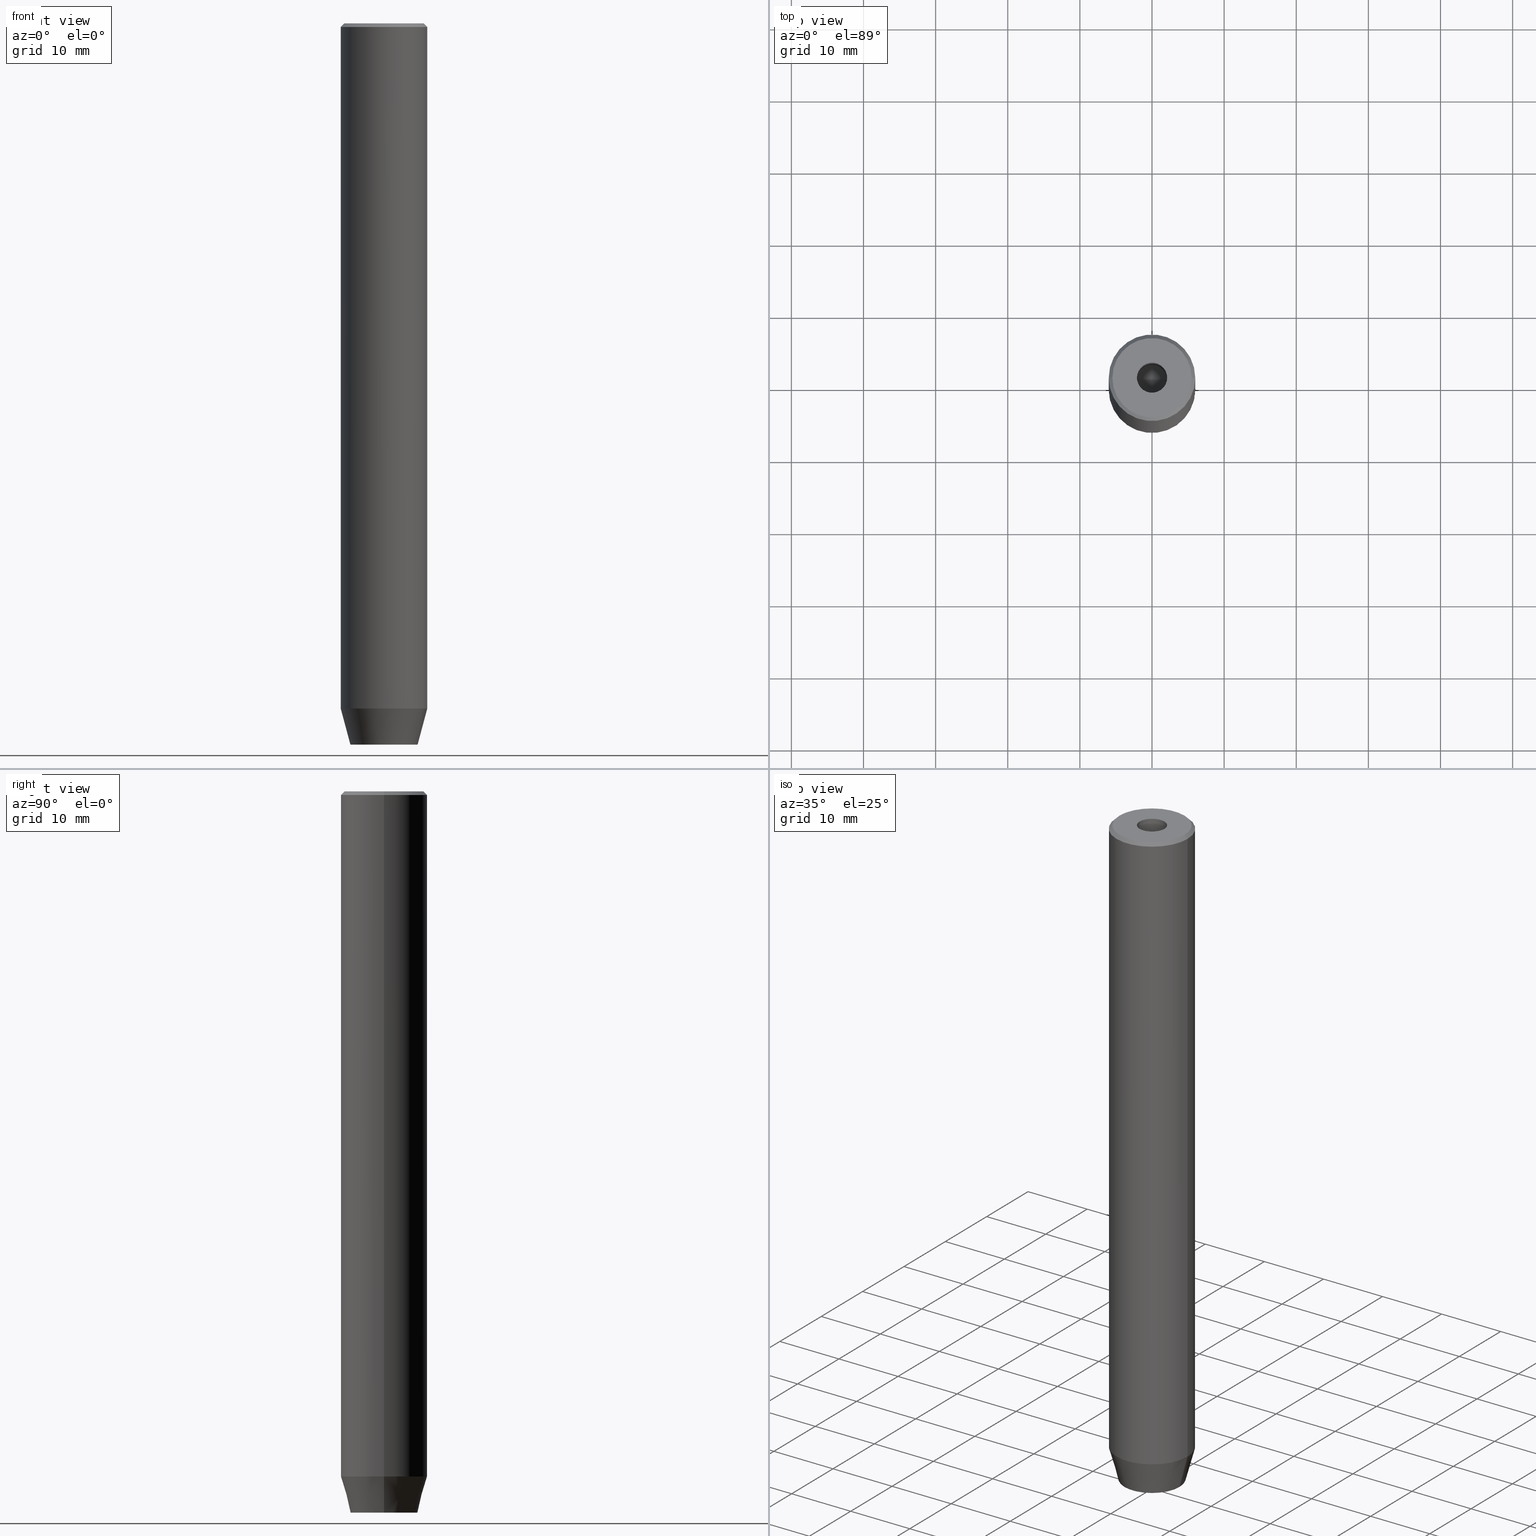
[diagram: canonical four-view strip — front | top / right | iso, engineering-drawing reading convention]
A machine part, canonical four-view strip (front | top / right | iso — engineering-drawing reading convention). The complete STEP part file that produces these views, byte-faithful:
ISO-10303-21;
HEADER;
FILE_DESCRIPTION (( 'STEP AP203' ),
    '1' );
FILE_NAME ('6c83.STEP',
    '2024-01-02T21:55:39',
    ( '' ),
    ( '' ),
    'SwSTEP 2.0',
    'SolidWorks 2019',
    '' );
FILE_SCHEMA (( 'CONFIG_CONTROL_DESIGN' ));
ENDSEC;

DATA;
#1 = EDGE_CURVE ( 'NONE', #283, #66, #377, .T. ) ;
#2 = ORIENTED_EDGE ( 'NONE', *, *, #380, .F. ) ;
#3 = CARTESIAN_POINT ( 'NONE',  ( -2.099999999999998757, 2.571758278209439985E-16, -1.990051048614449116E-16 ) ) ;
#4 = ORIENTED_EDGE ( 'NONE', *, *, #455, .F. ) ;
#5 = VECTOR ( 'NONE', #544, 1000.000000000000000 ) ;
#6 = CARTESIAN_POINT ( 'NONE',  ( -3.982994051648894933E-15, 0.000000000000000000, -16.26180729995787644 ) ) ;
#7 = ORIENTED_EDGE ( 'NONE', *, *, #494, .F. ) ;
#8 = CARTESIAN_POINT ( 'NONE',  ( 0.000000000000000000, 0.000000000000000000, 0.000000000000000000 ) ) ;
#9 = VERTEX_POINT ( 'NONE', #169 ) ;
#10 = CARTESIAN_POINT ( 'NONE',  ( -2.500000000000000444, 1.443375672974064772, -100.0000000000000000 ) ) ;
#11 = EDGE_CURVE ( 'NONE', #338, #332, #439, .T. ) ;
#12 = VERTEX_POINT ( 'NONE', #76 ) ;
#13 = CIRCLE ( 'NONE', #525, 6.000000000000000000 ) ;
#14 = FACE_OUTER_BOUND ( 'NONE', #511, .T. ) ;
#15 = AXIS2_PLACEMENT_3D ( 'NONE', #141, #512, #244 ) ;
#16 =( GEOMETRIC_REPRESENTATION_CONTEXT ( 3 ) GLOBAL_UNCERTAINTY_ASSIGNED_CONTEXT ( ( #148 ) ) GLOBAL_UNIT_ASSIGNED_CONTEXT ( ( #306, #384, #559 ) ) REPRESENTATION_CONTEXT ( 'NONE', 'WORKASPACE' ) );
#17 = EDGE_CURVE ( 'NONE', #529, #330, #257, .T. ) ;
#18 = ORIENTED_EDGE ( 'NONE', *, *, #538, .F. ) ;
#19 = CARTESIAN_POINT ( 'NONE',  ( 5.500000000000004441, 7.041719095097283838E-16, 0.000000000000000000 ) ) ;
#20 = EDGE_LOOP ( 'NONE', ( #285, #276 ) ) ;
#21 = DIRECTION ( 'NONE',  ( -0.000000000000000000, -0.000000000000000000, -1.000000000000000000 ) ) ;
#22 = ORIENTED_EDGE ( 'NONE', *, *, #236, .T. ) ;
#23 = DIRECTION ( 'NONE',  ( 0.000000000000000000, 0.000000000000000000, 1.000000000000000000 ) ) ;
#24 = CIRCLE ( 'NONE', #38, 6.000000000000000000 ) ;
#25 = CARTESIAN_POINT ( 'NONE',  ( -2.099999999999996980, 2.571758278209438013E-16, -15.00000000000000000 ) ) ;
#26 = VECTOR ( 'NONE', #363, 1000.000000000000000 ) ;
#27 = ORIENTED_EDGE ( 'NONE', *, *, #65, .T. ) ;
#28 = CARTESIAN_POINT ( 'NONE',  ( 5.500000000000004441, 6.735557395310447940E-16, 0.000000000000000000 ) ) ;
#29 = EDGE_CURVE ( 'NONE', #453, #12, #230, .T. ) ;
#30 = DIRECTION ( 'NONE',  ( 0.000000000000000000, 0.000000000000000000, -1.000000000000000000 ) ) ;
#31 = CARTESIAN_POINT ( 'NONE',  ( 0.000000000000000000, 0.000000000000000000, 0.000000000000000000 ) ) ;
#32 = DIRECTION ( 'NONE',  ( -0.7071067811865426878, 0.000000000000000000, -0.7071067811865524577 ) ) ;
#33 = CARTESIAN_POINT ( 'NONE',  ( 2.500000000000000000, 1.443375672974064328, -97.20000000000000284 ) ) ;
#34 = CARTESIAN_POINT ( 'NONE',  ( 0.000000000000000000, 0.000000000000000000, -0.5000000000000029976 ) ) ;
#35 = CARTESIAN_POINT ( 'NONE',  ( 2.500000000000000000, -1.443375672974064106, -97.20000000000000284 ) ) ;
#36 = CARTESIAN_POINT ( 'NONE',  ( -1.250000000000000444, 2.165063509461097269, -100.0000000000000000 ) ) ;
#37 = DATE_AND_TIME ( #219, #92 ) ;
#38 = AXIS2_PLACEMENT_3D ( 'NONE', #124, #74, #428 ) ;
#39 = DIRECTION ( 'NONE',  ( -0.8660254037844387076, -0.5000000000000001110, 0.000000000000000000 ) ) ;
#40 = VECTOR ( 'NONE', #56, 1000.000000000000000 ) ;
#41 = ORIENTED_EDGE ( 'NONE', *, *, #515, .T. ) ;
#42 = PERSON_AND_ORGANIZATION ( #562, #370 ) ;
#43 = FACE_OUTER_BOUND ( 'NONE', #172, .T. ) ;
#44 = ADVANCED_FACE ( 'NONE', ( #388 ), #573, .F. ) ;
#45 = APPROVAL_DATE_TIME ( #446, #424 ) ;
#46 = CARTESIAN_POINT ( 'NONE',  ( -2.500000000000000444, 0.000000000000000000, -97.20000000000000284 ) ) ;
#47 = AXIS2_PLACEMENT_3D ( 'NONE', #346, #260, #438 ) ;
#48 = AXIS2_PLACEMENT_3D ( 'NONE', #427, #23, #379 ) ;
#49 = LINE ( 'NONE', #560, #364 ) ;
#50 = EDGE_CURVE ( 'NONE', #415, #471, #49, .T. ) ;
#51 = ORIENTED_EDGE ( 'NONE', *, *, #418, .T. ) ;
#52 = FACE_BOUND ( 'NONE', #20, .T. ) ;
#53 = ORIENTED_EDGE ( 'NONE', *, *, #245, .T. ) ;
#54 = CARTESIAN_POINT ( 'NONE',  ( 0.000000000000000000, 0.000000000000000000, -15.00000000000000000 ) ) ;
#55 = AXIS2_PLACEMENT_3D ( 'NONE', #345, #178, #385 ) ;
#56 = DIRECTION ( 'NONE',  ( -0.000000000000000000, -0.000000000000000000, 1.000000000000000000 ) ) ;
#57 = ORIENTED_EDGE ( 'NONE', *, *, #455, .T. ) ;
#58 = DIRECTION ( 'NONE',  ( 0.000000000000000000, 0.000000000000000000, -1.000000000000000000 ) ) ;
#59 = ORIENTED_EDGE ( 'NONE', *, *, #17, .T. ) ;
#60 = LINE ( 'NONE', #416, #5 ) ;
#61 = ORIENTED_EDGE ( 'NONE', *, *, #11, .F. ) ;
#62 = AXIS2_PLACEMENT_3D ( 'NONE', #337, #270, #119 ) ;
#63 = CARTESIAN_POINT ( 'NONE',  ( 0.000000000000000000, 0.000000000000000000, 0.000000000000000000 ) ) ;
#64 = AXIS2_PLACEMENT_3D ( 'NONE', #8, #237, #506 ) ;
#65 = EDGE_CURVE ( 'NONE', #555, #471, #24, .T. ) ;
#66 = VERTEX_POINT ( 'NONE', #403 ) ;
#67 = DIRECTION ( 'NONE',  ( 0.000000000000000000, 1.000000000000000000, 0.000000000000000000 ) ) ;
#68 = ORIENTED_EDGE ( 'NONE', *, *, #333, .F. ) ;
#69 = FACE_OUTER_BOUND ( 'NONE', #425, .T. ) ;
#70 = LINE ( 'NONE', #381, #194 ) ;
#71 = ORIENTED_EDGE ( 'NONE', *, *, #465, .F. ) ;
#72 = CARTESIAN_POINT ( 'NONE',  ( 0.000000000000000000, 0.000000000000000000, -100.0000000000000000 ) ) ;
#73 = VECTOR ( 'NONE', #570, 1000.000000000000000 ) ;
#74 = DIRECTION ( 'NONE',  ( -0.000000000000000000, -0.000000000000000000, 1.000000000000000000 ) ) ;
#75 = CARTESIAN_POINT ( 'NONE',  ( 2.500000000000000000, 1.443375672974064328, -100.0000000000000000 ) ) ;
#76 = CARTESIAN_POINT ( 'NONE',  ( -2.099999999999996980, 2.571758278209438013E-16, -15.00000000000000000 ) ) ;
#77 = CARTESIAN_POINT ( 'NONE',  ( 0.000000000000000000, 0.000000000000000000, -1.990051048614449116E-16 ) ) ;
#78 = DIRECTION ( 'NONE',  ( -1.000000000000000000, 0.000000000000000000, -0.000000000000000000 ) ) ;
#79 = DIRECTION ( 'NONE',  ( 1.000000000000000000, 0.000000000000000000, 0.000000000000000000 ) ) ;
#80 = DIRECTION ( 'NONE',  ( 1.000000000000000000, 0.000000000000000000, 0.000000000000000000 ) ) ;
#81 = ADVANCED_FACE ( 'NONE', ( #340 ), #524, .F. ) ;
#82 = CARTESIAN_POINT ( 'NONE',  ( 0.000000000000000000, 0.000000000000000000, -15.00000000000000000 ) ) ;
#83 = EDGE_LOOP ( 'NONE', ( #293, #352, #522, #567 ) ) ;
#84 = PERSON_AND_ORGANIZATION_ROLE ( 'classification_officer' ) ;
#85 = CLOSED_SHELL ( 'NONE', ( #498, #98, #280, #436, #542, #140, #233, #360, #231, #329, #356, #81, #115, #44, #275, #227, #410, #316, #390 ) ) ;
#86 = DIRECTION ( 'NONE',  ( 0.000000000000000000, 0.000000000000000000, -1.000000000000000000 ) ) ;
#87 = CIRCLE ( 'NONE', #586, 2.099999999999996980 ) ;
#88 = COORDINATED_UNIVERSAL_TIME_OFFSET ( 1, 0, .AHEAD. ) ;
#89 = EDGE_CURVE ( 'NONE', #107, #321, #518, .T. ) ;
#90 = CARTESIAN_POINT ( 'NONE',  ( 2.500000000000000000, 1.443375672974064328, -97.20000000000000284 ) ) ;
#91 = DIRECTION ( 'NONE',  ( -0.2588190451025214611, 3.169619151431774186E-17, 0.9659258262890679791 ) ) ;
#92 = LOCAL_TIME ( 22, 55, 39.00000000000000000, #493 ) ;
#93 = VECTOR ( 'NONE', #484, 1000.000000000000000 ) ;
#94 = ORIENTED_EDGE ( 'NONE', *, *, #181, .F. ) ;
#95 = PLANE ( 'NONE',  #165 ) ;
#96 = PLANE ( 'NONE',  #15 ) ;
#97 = FACE_OUTER_BOUND ( 'NONE', #83, .T. ) ;
#98 = ADVANCED_FACE ( 'NONE', ( #314 ), #584, .F. ) ;
#99 = AXIS2_PLACEMENT_3D ( 'NONE', #307, #210, #486 ) ;
#100 = ORIENTED_EDGE ( 'NONE', *, *, #538, .T. ) ;
#101 = DIRECTION ( 'NONE',  ( 1.000000000000000000, 0.000000000000000000, 0.000000000000000000 ) ) ;
#102 = ORIENTED_EDGE ( 'NONE', *, *, #175, .F. ) ;
#103 = CARTESIAN_POINT ( 'NONE',  ( 0.000000000000000000, -2.886751345948128211, -100.0000000000000000 ) ) ;
#104 = ORIENTED_EDGE ( 'NONE', *, *, #465, .T. ) ;
#105 = EDGE_CURVE ( 'NONE', #332, #201, #255, .T. ) ;
#106 = CYLINDRICAL_SURFACE ( 'NONE', #527, 6.000000000000000000 ) ;
#107 = VERTEX_POINT ( 'NONE', #133 ) ;
#108 = AXIS2_PLACEMENT_3D ( 'NONE', #144, #328, #550 ) ;
#109 = ORIENTED_EDGE ( 'NONE', *, *, #89, .T. ) ;
#110 = FACE_OUTER_BOUND ( 'NONE', #185, .T. ) ;
#111 = EDGE_CURVE ( 'NONE', #179, #332, #207, .T. ) ;
#112 = ORIENTED_EDGE ( 'NONE', *, *, #405, .F. ) ;
#113 = LINE ( 'NONE', #437, #391 ) ;
#114 = FACE_OUTER_BOUND ( 'NONE', #305, .T. ) ;
#115 = ADVANCED_FACE ( 'NONE', ( #110 ), #432, .F. ) ;
#116 = EDGE_LOOP ( 'NONE', ( #299, #121, #243, #264 ) ) ;
#117 = APPLICATION_PROTOCOL_DEFINITION ( 'international standard', 'config_control_design', 1994, #212 ) ;
#118 = AXIS2_PLACEMENT_3D ( 'NONE', #213, #222, #80 ) ;
#119 = DIRECTION ( 'NONE',  ( 1.000000000000000000, 0.000000000000000000, 0.000000000000000000 ) ) ;
#120 = CARTESIAN_POINT ( 'NONE',  ( 0.000000000000000000, 0.000000000000000000, 0.000000000000000000 ) ) ;
#121 = ORIENTED_EDGE ( 'NONE', *, *, #517, .T. ) ;
#122 = EDGE_CURVE ( 'NONE', #9, #408, #70, .T. ) ;
#123 = APPROVAL_ROLE ( '' ) ;
#124 = CARTESIAN_POINT ( 'NONE',  ( 0.000000000000000000, 0.000000000000000000, -95.00000000000000000 ) ) ;
#125 = CARTESIAN_POINT ( 'NONE',  ( 2.099999999999996980, 0.000000000000000000, -15.00000000000000000 ) ) ;
#126 = EDGE_LOOP ( 'NONE', ( #387, #513, #102, #248 ) ) ;
#127 = PERSON_AND_ORGANIZATION ( #562, #370 ) ;
#128 = EDGE_CURVE ( 'NONE', #383, #555, #113, .T. ) ;
#129 = PLANE ( 'NONE',  #242 ) ;
#130 = APPROVAL_ROLE ( '' ) ;
#131 = APPROVAL_STATUS ( 'not_yet_approved' ) ;
#132 = EDGE_CURVE ( 'NONE', #443, #321, #296, .T. ) ;
#133 = CARTESIAN_POINT ( 'NONE',  ( -2.500000000000000444, -1.443375672974064328, -97.20000000000000284 ) ) ;
#134 = DIRECTION ( 'NONE',  ( 0.5000000000000001110, 0.8660254037844385966, -0.000000000000000000 ) ) ;
#135 = AXIS2_PLACEMENT_3D ( 'NONE', #532, #86, #256 ) ;
#136 = AXIS2_PLACEMENT_3D ( 'NONE', #376, #343, #334 ) ;
#137 = CARTESIAN_POINT ( 'NONE',  ( 2.500000000000000000, -1.443375672974064106, -100.0000000000000000 ) ) ;
#138 = ORIENTED_EDGE ( 'NONE', *, *, #153, .T. ) ;
#139 = LINE ( 'NONE', #546, #26 ) ;
#140 = ADVANCED_FACE ( 'NONE', ( #350, #157 ), #478, .T. ) ;
#141 = CARTESIAN_POINT ( 'NONE',  ( 0.000000000000000000, 0.000000000000000000, -97.20000000000000284 ) ) ;
#142 = ORIENTED_EDGE ( 'NONE', *, *, #236, .F. ) ;
#143 = VECTOR ( 'NONE', #200, 1000.000000000000000 ) ;
#144 = CARTESIAN_POINT ( 'NONE',  ( 0.000000000000000000, 0.000000000000000000, -0.5000000000000029976 ) ) ;
#145 = EDGE_CURVE ( 'NONE', #471, #555, #413, .T. ) ;
#146 = ORIENTED_EDGE ( 'NONE', *, *, #65, .F. ) ;
#147 = CARTESIAN_POINT ( 'NONE',  ( -4.660254037844381081, 6.527522992771884330E-16, -100.0000000000000000 ) ) ;
#148 = UNCERTAINTY_MEASURE_WITH_UNIT (LENGTH_MEASURE( 1.000000000000000082E-05 ), #306, 'distance_accuracy_value', 'NONE');
#149 = ORIENTED_EDGE ( 'NONE', *, *, #298, .F. ) ;
#150 = LINE ( 'NONE', #374, #406 ) ;
#151 = MANIFOLD_SOLID_BREP ( 'Vrt�k z�vitn�ku pro M5 z�vit1', #85 ) ;
#152 = EDGE_LOOP ( 'NONE', ( #53, #218, #100, #407, #464, #327 ) ) ;
#153 = EDGE_CURVE ( 'NONE', #488, #330, #13, .T. ) ;
#154 = CARTESIAN_POINT ( 'NONE',  ( -2.500000000000000444, -1.443375672974064328, -97.20000000000000284 ) ) ;
#155 = ORIENTED_EDGE ( 'NONE', *, *, #583, .F. ) ;
#156 = DIRECTION ( 'NONE',  ( -0.000000000000000000, -0.000000000000000000, 1.000000000000000000 ) ) ;
#157 = FACE_OUTER_BOUND ( 'NONE', #196, .T. ) ;
#158 = VERTEX_POINT ( 'NONE', #90 ) ;
#159 = PERSON_AND_ORGANIZATION ( #562, #370 ) ;
#160 = DIRECTION ( 'NONE',  ( -0.8571673007021113344, 1.049727191138617463E-16, 0.5150380749100558209 ) ) ;
#161 = FACE_OUTER_BOUND ( 'NONE', #126, .T. ) ;
#162 = LOCAL_TIME ( 22, 55, 39.00000000000000000, #537 ) ;
#163 = ORIENTED_EDGE ( 'NONE', *, *, #145, .T. ) ;
#164 = CARTESIAN_POINT ( 'NONE',  ( 6.000000000000000000, 0.000000000000000000, -95.00000000000000000 ) ) ;
#165 = AXIS2_PLACEMENT_3D ( 'NONE', #274, #168, #442 ) ;
#166 = DIRECTION ( 'NONE',  ( -1.000000000000000000, 0.000000000000000000, 0.000000000000000000 ) ) ;
#167 = CC_DESIGN_APPROVAL ( #341, ( #447 ) ) ;
#168 = DIRECTION ( 'NONE',  ( 1.000000000000000000, 0.000000000000000000, -0.000000000000000000 ) ) ;
#169 = CARTESIAN_POINT ( 'NONE',  ( 2.500000000000000000, -1.443375672974064106, -97.20000000000000284 ) ) ;
#170 = CALENDAR_DATE ( 2024, 2, 1 ) ;
#171 = DIRECTION ( 'NONE',  ( 1.000000000000000000, 0.000000000000000000, 0.000000000000000000 ) ) ;
#172 = EDGE_LOOP ( 'NONE', ( #558, #533, #273, #319 ) ) ;
#173 = APPROVAL_STATUS ( 'not_yet_approved' ) ;
#174 = DATE_AND_TIME ( #582, #452 ) ;
#175 = EDGE_CURVE ( 'NONE', #179, #158, #269, .T. ) ;
#176 = VECTOR ( 'NONE', #226, 1000.000000000000000 ) ;
#177 = CONICAL_SURFACE ( 'NONE', #429, 6.000000000000000000, 0.2617993877991502405 ) ;
#178 = DIRECTION ( 'NONE',  ( -0.4999999999999998890, -0.8660254037844387076, 0.000000000000000000 ) ) ;
#179 = VERTEX_POINT ( 'NONE', #354 ) ;
#180 = CARTESIAN_POINT ( 'NONE',  ( 1.250000000000000222, 2.165063509461096825, -97.20000000000000284 ) ) ;
#181 = EDGE_CURVE ( 'NONE', #481, #338, #232, .T. ) ;
#182 = ORIENTED_EDGE ( 'NONE', *, *, #247, .T. ) ;
#183 = APPROVAL_PERSON_ORGANIZATION ( #42, #424, #130 ) ;
#184 = LINE ( 'NONE', #521, #253 ) ;
#185 = EDGE_LOOP ( 'NONE', ( #342, #187, #68, #571 ) ) ;
#186 = CARTESIAN_POINT ( 'NONE',  ( -1.250000000000000444, 2.165063509461097269, -97.20000000000000284 ) ) ;
#187 = ORIENTED_EDGE ( 'NONE', *, *, #89, .F. ) ;
#188 = FACE_OUTER_BOUND ( 'NONE', #152, .T. ) ;
#189 = CC_DESIGN_PERSON_AND_ORGANIZATION_ASSIGNMENT ( #127, #353, ( #401 ) ) ;
#190 = EDGE_LOOP ( 'NONE', ( #104, #182 ) ) ;
#191 = DIRECTION ( 'NONE',  ( -0.000000000000000000, -0.000000000000000000, 1.000000000000000000 ) ) ;
#192 = CC_DESIGN_APPROVAL ( #564, ( #401 ) ) ;
#193 = EDGE_CURVE ( 'NONE', #12, #283, #454, .T. ) ;
#194 = VECTOR ( 'NONE', #303, 999.9999999999998863 ) ;
#195 = CONICAL_SURFACE ( 'NONE', #492, 5.500000000000004441, 0.7853981633974415066 ) ;
#196 = EDGE_LOOP ( 'NONE', ( #155, #362 ) ) ;
#197 = CARTESIAN_POINT ( 'NONE',  ( -1.249999999999999556, -2.165063509461096825, -97.20000000000000284 ) ) ;
#198 = ADVANCED_BREP_SHAPE_REPRESENTATION ( '6c83', ( #151, #48 ), #16 ) ;
#199 = ORIENTED_EDGE ( 'NONE', *, *, #128, .F. ) ;
#200 = DIRECTION ( 'NONE',  ( 0.7071067811865426878, 8.659560562354874926E-17, -0.7071067811865524577 ) ) ;
#201 = VERTEX_POINT ( 'NONE', #75 ) ;
#202 = LINE ( 'NONE', #440, #528 ) ;
#203 = ORIENTED_EDGE ( 'NONE', *, *, #509, .T. ) ;
#204 = AXIS2_PLACEMENT_3D ( 'NONE', #259, #565, #292 ) ;
#205 = CYLINDRICAL_SURFACE ( 'NONE', #254, 2.099999999999997868 ) ;
#206 = AXIS2_PLACEMENT_3D ( 'NONE', #54, #367, #101 ) ;
#207 = LINE ( 'NONE', #495, #325 ) ;
#208 = ORIENTED_EDGE ( 'NONE', *, *, #517, .F. ) ;
#209 = DIRECTION ( 'NONE',  ( 0.000000000000000000, -1.000000000000000000, 0.000000000000000000 ) ) ;
#210 = DIRECTION ( 'NONE',  ( -0.000000000000000000, -0.000000000000000000, 1.000000000000000000 ) ) ;
#211 = DIRECTION ( 'NONE',  ( 1.000000000000000000, 0.000000000000000000, 0.000000000000000000 ) ) ;
#212 = APPLICATION_CONTEXT ( 'configuration controlled 3d designs of mechanical parts and assemblies' ) ;
#213 = CARTESIAN_POINT ( 'NONE',  ( 0.000000000000000000, 0.000000000000000000, -1.990051048614449116E-16 ) ) ;
#214 = DIRECTION ( 'NONE',  ( -0.000000000000000000, -0.000000000000000000, 1.000000000000000000 ) ) ;
#215 = CARTESIAN_POINT ( 'NONE',  ( 1.250000000000000222, 2.165063509461096825, -100.0000000000000000 ) ) ;
#216 = EDGE_CURVE ( 'NONE', #456, #443, #581, .T. ) ;
#217 = DIRECTION ( 'NONE',  ( -0.000000000000000000, -0.000000000000000000, -1.000000000000000000 ) ) ;
#218 = ORIENTED_EDGE ( 'NONE', *, *, #175, .T. ) ;
#219 = CALENDAR_DATE ( 2024, 2, 1 ) ;
#220 = VECTOR ( 'NONE', #469, 1000.000000000000114 ) ;
#221 = LINE ( 'NONE', #125, #404 ) ;
#222 = DIRECTION ( 'NONE',  ( -0.000000000000000000, -0.000000000000000000, 1.000000000000000000 ) ) ;
#223 = CALENDAR_DATE ( 2024, 2, 1 ) ;
#224 = CARTESIAN_POINT ( 'NONE',  ( -2.099999999999997868, 2.571758278209438999E-16, 0.000000000000000000 ) ) ;
#225 = APPROVAL_DATE_TIME ( #174, #341 ) ;
#226 = DIRECTION ( 'NONE',  ( -0.000000000000000000, -0.000000000000000000, -1.000000000000000000 ) ) ;
#227 = ADVANCED_FACE ( 'NONE', ( #161 ), #129, .F. ) ;
#228 = AXIS2_PLACEMENT_3D ( 'NONE', #361, #526, #79 ) ;
#229 = VECTOR ( 'NONE', #209, 1000.000000000000000 ) ;
#230 = LINE ( 'NONE', #25, #449 ) ;
#231 = ADVANCED_FACE ( 'NONE', ( #43 ), #300, .T. ) ;
#232 = LINE ( 'NONE', #536, #402 ) ;
#233 = ADVANCED_FACE ( 'NONE', ( #52, #409 ), #386, .T. ) ;
#234 = DIRECTION ( 'NONE',  ( -0.000000000000000000, -0.000000000000000000, 1.000000000000000000 ) ) ;
#235 = CARTESIAN_POINT ( 'NONE',  ( 0.000000000000000000, 0.000000000000000000, -95.00000000000000000 ) ) ;
#236 = EDGE_CURVE ( 'NONE', #9, #456, #311, .T. ) ;
#237 = DIRECTION ( 'NONE',  ( -0.000000000000000000, -0.000000000000000000, 1.000000000000000000 ) ) ;
#238 = ORIENTED_EDGE ( 'NONE', *, *, #515, .F. ) ;
#239 = CARTESIAN_POINT ( 'NONE',  ( -6.000000000000000000, 7.347880794884119736E-16, -0.5000000000000029976 ) ) ;
#240 = EDGE_CURVE ( 'NONE', #415, #383, #271, .T. ) ;
#241 = LOCAL_TIME ( 22, 55, 39.00000000000000000, #88 ) ;
#242 = AXIS2_PLACEMENT_3D ( 'NONE', #180, #134, #398 ) ;
#243 = ORIENTED_EDGE ( 'NONE', *, *, #418, .F. ) ;
#244 = DIRECTION ( 'NONE',  ( -1.000000000000000000, 0.000000000000000000, -0.000000000000000000 ) ) ;
#245 = EDGE_CURVE ( 'NONE', #481, #179, #389, .T. ) ;
#246 = EDGE_LOOP ( 'NONE', ( #375, #579, #309, #549 ) ) ;
#247 = EDGE_CURVE ( 'NONE', #373, #529, #318, .T. ) ;
#248 = ORIENTED_EDGE ( 'NONE', *, *, #111, .T. ) ;
#249 = DIRECTION ( 'NONE',  ( 0.2588190451025214611, 0.000000000000000000, 0.9659258262890679791 ) ) ;
#250 = EDGE_LOOP ( 'NONE', ( #468, #473, #519 ) ) ;
#251 = VECTOR ( 'NONE', #39, 999.9999999999998863 ) ;
#252 = LINE ( 'NONE', #568, #229 ) ;
#253 = VECTOR ( 'NONE', #487, 1000.000000000000000 ) ;
#254 = AXIS2_PLACEMENT_3D ( 'NONE', #474, #156, #472 ) ;
#255 = LINE ( 'NONE', #215, #266 ) ;
#256 = DIRECTION ( 'NONE',  ( -1.000000000000000000, 0.000000000000000000, 0.000000000000000000 ) ) ;
#257 = LINE ( 'NONE', #434, #496 ) ;
#258 = DIRECTION ( 'NONE',  ( -0.000000000000000000, -0.000000000000000000, 1.000000000000000000 ) ) ;
#259 = CARTESIAN_POINT ( 'NONE',  ( 1.249999999999999778, -2.165063509461096380, -97.20000000000000284 ) ) ;
#260 = DIRECTION ( 'NONE',  ( -0.000000000000000000, -0.000000000000000000, 1.000000000000000000 ) ) ;
#261 = ORIENTED_EDGE ( 'NONE', *, *, #323, .F. ) ;
#262 = COORDINATED_UNIVERSAL_TIME_OFFSET ( 1, 0, .AHEAD. ) ;
#263 = CARTESIAN_POINT ( 'NONE',  ( -2.500000000000000444, -1.443375672974064328, -100.0000000000000000 ) ) ;
#264 = ORIENTED_EDGE ( 'NONE', *, *, #17, .F. ) ;
#265 = DATE_TIME_ROLE ( 'classification_date' ) ;
#266 = VECTOR ( 'NONE', #450, 1000.000000000000000 ) ;
#267 = CARTESIAN_POINT ( 'NONE',  ( -1.250000000000000444, 2.165063509461097269, -97.20000000000000284 ) ) ;
#268 = CALENDAR_DATE ( 2024, 2, 1 ) ;
#269 = LINE ( 'NONE', #448, #507 ) ;
#270 = DIRECTION ( 'NONE',  ( -0.000000000000000000, -0.000000000000000000, 1.000000000000000000 ) ) ;
#271 = CIRCLE ( 'NONE', #347, 4.660254037844381081 ) ;
#272 = AXIS2_PLACEMENT_3D ( 'NONE', #77, #435, #514 ) ;
#273 = ORIENTED_EDGE ( 'NONE', *, *, #128, .T. ) ;
#274 = CARTESIAN_POINT ( 'NONE',  ( 2.500000000000000000, 0.000000000000000000, -97.20000000000000284 ) ) ;
#275 = ADVANCED_FACE ( 'NONE', ( #575 ), #95, .F. ) ;
#276 = ORIENTED_EDGE ( 'NONE', *, *, #1, .F. ) ;
#277 = FACE_OUTER_BOUND ( 'NONE', #497, .T. ) ;
#278 = PRODUCT_RELATED_PRODUCT_CATEGORY ( 'detail', '', ( #382 ) ) ;
#279 = CARTESIAN_POINT ( 'NONE',  ( 0.000000000000000000, 0.000000000000000000, 0.000000000000000000 ) ) ;
#280 = ADVANCED_FACE ( 'NONE', ( #351 ), #508, .T. ) ;
#281 = CARTESIAN_POINT ( 'NONE',  ( -6.000000000000000000, 7.347880794884119736E-16, -95.00000000000000000 ) ) ;
#282 = EDGE_CURVE ( 'NONE', #453, #430, #221, .T. ) ;
#283 = VERTEX_POINT ( 'NONE', #3 ) ;
#284 = CARTESIAN_POINT ( 'NONE',  ( 6.000000000000000000, 0.000000000000000000, 0.000000000000000000 ) ) ;
#285 = ORIENTED_EDGE ( 'NONE', *, *, #554, .F. ) ;
#286 = DIRECTION ( 'NONE',  ( 1.000000000000000000, 0.000000000000000000, 0.000000000000000000 ) ) ;
#287 = AXIS2_PLACEMENT_3D ( 'NONE', #63, #553, #412 ) ;
#288 = ORIENTED_EDGE ( 'NONE', *, *, #405, .T. ) ;
#289 = FACE_OUTER_BOUND ( 'NONE', #545, .T. ) ;
#290 = ORIENTED_EDGE ( 'NONE', *, *, #105, .F. ) ;
#291 = CARTESIAN_POINT ( 'NONE',  ( -5.500000000000004441, 0.000000000000000000, 0.000000000000000000 ) ) ;
#292 = DIRECTION ( 'NONE',  ( 0.8660254037844385966, 0.4999999999999999445, 0.000000000000000000 ) ) ;
#293 = ORIENTED_EDGE ( 'NONE', *, *, #193, .F. ) ;
#294 = PERSON_AND_ORGANIZATION ( #562, #370 ) ;
#295 = PRODUCT_DEFINITION_SHAPE ( 'NONE', 'NONE',  #447 ) ;
#296 = LINE ( 'NONE', #520, #460 ) ;
#297 = DIRECTION ( 'NONE',  ( -0.000000000000000000, -0.000000000000000000, -1.000000000000000000 ) ) ;
#298 = EDGE_CURVE ( 'NONE', #430, #66, #184, .T. ) ;
#299 = ORIENTED_EDGE ( 'NONE', *, *, #247, .F. ) ;
#300 = CONICAL_SURFACE ( 'NONE', #47, 6.000000000000000000, 0.2617993877991502405 ) ;
#301 = LINE ( 'NONE', #28, #143 ) ;
#302 = APPROVAL_PERSON_ORGANIZATION ( #159, #341, #123 ) ;
#303 = DIRECTION ( 'NONE',  ( -0.8660254037844387076, -0.5000000000000001110, 0.000000000000000000 ) ) ;
#304 = DIRECTION ( 'NONE',  ( -0.000000000000000000, -0.000000000000000000, 1.000000000000000000 ) ) ;
#305 = EDGE_LOOP ( 'NONE', ( #516, #348, #426 ) ) ;
#306 =( LENGTH_UNIT ( ) NAMED_UNIT ( * ) SI_UNIT ( .MILLI., .METRE. ) );
#307 = CARTESIAN_POINT ( 'NONE',  ( 0.000000000000000000, 0.000000000000000000, -95.00000000000000000 ) ) ;
#308 = DIRECTION ( 'NONE',  ( 0.8571673007021113344, 0.000000000000000000, 0.5150380749100558209 ) ) ;
#309 = ORIENTED_EDGE ( 'NONE', *, *, #245, .F. ) ;
#310 = COORDINATED_UNIVERSAL_TIME_OFFSET ( 1, 0, .AHEAD. ) ;
#311 = LINE ( 'NONE', #35, #574 ) ;
#312 = APPROVAL_DATE_TIME ( #580, #564 ) ;
#313 = APPLICATION_CONTEXT ( 'configuration controlled 3d designs of mechanical parts and assemblies' ) ;
#314 = FACE_OUTER_BOUND ( 'NONE', #250, .T. ) ;
#315 = CC_DESIGN_SECURITY_CLASSIFICATION ( #344, ( #401 ) ) ;
#316 = ADVANCED_FACE ( 'NONE', ( #114 ), #585, .F. ) ;
#317 = DIRECTION ( 'NONE',  ( -0.000000000000000000, -0.000000000000000000, 1.000000000000000000 ) ) ;
#318 = CIRCLE ( 'NONE', #421, 5.500000000000004441 ) ;
#319 = ORIENTED_EDGE ( 'NONE', *, *, #145, .F. ) ;
#320 = FACE_OUTER_BOUND ( 'NONE', #246, .T. ) ;
#321 = VERTEX_POINT ( 'NONE', #263 ) ;
#322 = DIRECTION ( 'NONE',  ( -0.000000000000000000, -0.000000000000000000, 1.000000000000000000 ) ) ;
#323 = EDGE_CURVE ( 'NONE', #408, #443, #395, .T. ) ;
#324 = CARTESIAN_POINT ( 'NONE',  ( 2.099999999999996980, 0.000000000000000000, -15.00000000000000000 ) ) ;
#325 = VECTOR ( 'NONE', #587, 1000.000000000000000 ) ;
#326 = CIRCLE ( 'NONE', #64, 5.500000000000004441 ) ;
#327 = ORIENTED_EDGE ( 'NONE', *, *, #494, .T. ) ;
#328 = DIRECTION ( 'NONE',  ( 0.000000000000000000, 0.000000000000000000, -1.000000000000000000 ) ) ;
#329 = ADVANCED_FACE ( 'NONE', ( #479 ), #195, .T. ) ;
#330 = VERTEX_POINT ( 'NONE', #239 ) ;
#331 = LINE ( 'NONE', #197, #220 ) ;
#332 = VERTEX_POINT ( 'NONE', #420 ) ;
#333 = EDGE_CURVE ( 'NONE', #408, #107, #331, .T. ) ;
#334 = DIRECTION ( 'NONE',  ( 1.000000000000000000, 0.000000000000000000, 0.000000000000000000 ) ) ;
#335 = AXIS2_PLACEMENT_3D ( 'NONE', #569, #30, #78 ) ;
#336 = ORIENTED_EDGE ( 'NONE', *, *, #583, .T. ) ;
#337 = CARTESIAN_POINT ( 'NONE',  ( 0.000000000000000000, 0.000000000000000000, -15.00000000000000000 ) ) ;
#338 = VERTEX_POINT ( 'NONE', #10 ) ;
#339 = MECHANICAL_CONTEXT ( 'NONE', #313, 'mechanical' ) ;
#340 = FACE_OUTER_BOUND ( 'NONE', #419, .T. ) ;
#341 = APPROVAL ( #530, 'NEUR�EN�' ) ;
#342 = ORIENTED_EDGE ( 'NONE', *, *, #132, .T. ) ;
#343 = DIRECTION ( 'NONE',  ( -0.000000000000000000, -0.000000000000000000, 1.000000000000000000 ) ) ;
#344 = SECURITY_CLASSIFICATION ( '', '', #393 ) ;
#345 = CARTESIAN_POINT ( 'NONE',  ( -1.249999999999999556, -2.165063509461096825, -97.20000000000000284 ) ) ;
#346 = CARTESIAN_POINT ( 'NONE',  ( 0.000000000000000000, 0.000000000000000000, -95.00000000000000000 ) ) ;
#347 = AXIS2_PLACEMENT_3D ( 'NONE', #491, #317, #500 ) ;
#348 = ORIENTED_EDGE ( 'NONE', *, *, #282, .T. ) ;
#349 = CIRCLE ( 'NONE', #108, 6.000000000000000000 ) ;
#350 = FACE_BOUND ( 'NONE', #543, .T. ) ;
#351 = FACE_OUTER_BOUND ( 'NONE', #116, .T. ) ;
#352 = ORIENTED_EDGE ( 'NONE', *, *, #458, .F. ) ;
#353 = PERSON_AND_ORGANIZATION_ROLE ( 'design_supplier' ) ;
#354 = CARTESIAN_POINT ( 'NONE',  ( -1.084202172485504434E-16, 2.886751345948129543, -97.20000000000000284 ) ) ;
#355 = PERSON_AND_ORGANIZATION_ROLE ( 'creator' ) ;
#356 = ADVANCED_FACE ( 'NONE', ( #320 ), #459, .F. ) ;
#357 = DATE_AND_TIME ( #223, #499 ) ;
#358 = AXIS2_PLACEMENT_3D ( 'NONE', #46, #166, #475 ) ;
#359 = DIRECTION ( 'NONE',  ( 0.8660254037844385966, -0.5000000000000001110, 0.000000000000000000 ) ) ;
#360 = ADVANCED_FACE ( 'NONE', ( #14 ), #106, .T. ) ;
#361 = CARTESIAN_POINT ( 'NONE',  ( 0.000000000000000000, 0.000000000000000000, 0.000000000000000000 ) ) ;
#362 = ORIENTED_EDGE ( 'NONE', *, *, #240, .F. ) ;
#363 = DIRECTION ( 'NONE',  ( 0.000000000000000000, -1.000000000000000000, 0.000000000000000000 ) ) ;
#364 = VECTOR ( 'NONE', #91, 1000.000000000000114 ) ;
#365 = ORIENTED_EDGE ( 'NONE', *, *, #216, .T. ) ;
#366 = CARTESIAN_POINT ( 'NONE',  ( 0.000000000000000000, 0.000000000000000000, -15.00000000000000000 ) ) ;
#367 = DIRECTION ( 'NONE',  ( -0.000000000000000000, -0.000000000000000000, 1.000000000000000000 ) ) ;
#368 = CARTESIAN_POINT ( 'NONE',  ( 0.000000000000000000, -2.886751345948128211, -97.20000000000000284 ) ) ;
#369 = VECTOR ( 'NONE', #297, 1000.000000000000000 ) ;
#370 = ORGANIZATION ( 'NEUR�EN�', 'NEUR�EN�', '' ) ;
#371 = ORIENTED_EDGE ( 'NONE', *, *, #1, .T. ) ;
#372 = CYLINDRICAL_SURFACE ( 'NONE', #287, 2.099999999999997868 ) ;
#373 = VERTEX_POINT ( 'NONE', #19 ) ;
#374 = CARTESIAN_POINT ( 'NONE',  ( -6.000000000000000000, 7.347880794884119736E-16, 0.000000000000000000 ) ) ;
#375 = ORIENTED_EDGE ( 'NONE', *, *, #11, .T. ) ;
#376 = CARTESIAN_POINT ( 'NONE',  ( 0.000000000000000000, 0.000000000000000000, 0.000000000000000000 ) ) ;
#377 = CIRCLE ( 'NONE', #118, 2.099999999999998757 ) ;
#378 = ORIENTED_EDGE ( 'NONE', *, *, #153, .F. ) ;
#379 = DIRECTION ( 'NONE',  ( 1.000000000000000000, 0.000000000000000000, 0.000000000000000000 ) ) ;
#380 = EDGE_CURVE ( 'NONE', #12, #430, #461, .T. ) ;
#381 = CARTESIAN_POINT ( 'NONE',  ( 1.249999999999999778, -2.165063509461096380, -97.20000000000000284 ) ) ;
#382 = PRODUCT ( '6c83', '6c83', '', ( #339 ) ) ;
#383 = VERTEX_POINT ( 'NONE', #510 ) ;
#384 =( NAMED_UNIT ( * ) PLANE_ANGLE_UNIT ( ) SI_UNIT ( $, .RADIAN. ) );
#385 = DIRECTION ( 'NONE',  ( 0.8660254037844387076, -0.4999999999999998890, 0.000000000000000000 ) ) ;
#386 = PLANE ( 'NONE',  #228 ) ;
#387 = ORIENTED_EDGE ( 'NONE', *, *, #105, .T. ) ;
#388 = FACE_OUTER_BOUND ( 'NONE', #552, .T. ) ;
#389 = LINE ( 'NONE', #267, #93 ) ;
#390 = ADVANCED_FACE ( 'NONE', ( #97 ), #372, .F. ) ;
#391 = VECTOR ( 'NONE', #249, 1000.000000000000114 ) ;
#392 = ORIENTED_EDGE ( 'NONE', *, *, #193, .T. ) ;
#393 = SECURITY_CLASSIFICATION_LEVEL ( 'unclassified' ) ;
#394 = VECTOR ( 'NONE', #21, 1000.000000000000000 ) ;
#395 = LINE ( 'NONE', #578, #369 ) ;
#396 = DIRECTION ( 'NONE',  ( 0.8660254037844385966, 0.5000000000000001110, 0.000000000000000000 ) ) ;
#397 = DATE_TIME_ROLE ( 'creation_date' ) ;
#398 = DIRECTION ( 'NONE',  ( -0.8660254037844385966, 0.5000000000000001110, 0.000000000000000000 ) ) ;
#399 = PERSON_AND_ORGANIZATION ( #562, #370 ) ;
#400 = CC_DESIGN_DATE_AND_TIME_ASSIGNMENT ( #357, #397, ( #447 ) ) ;
#401 = PRODUCT_DEFINITION_FORMATION_WITH_SPECIFIED_SOURCE ( 'LIBOVOLN�', '', #382, .NOT_KNOWN. ) ;
#402 = VECTOR ( 'NONE', #433, 1000.000000000000000 ) ;
#403 = CARTESIAN_POINT ( 'NONE',  ( 2.099999999999998757, 0.000000000000000000, -1.990051048614449116E-16 ) ) ;
#404 = VECTOR ( 'NONE', #308, 1000.000000000000000 ) ;
#405 = EDGE_CURVE ( 'NONE', #555, #488, #501, .T. ) ;
#406 = VECTOR ( 'NONE', #258, 1000.000000000000000 ) ;
#407 = ORIENTED_EDGE ( 'NONE', *, *, #122, .T. ) ;
#408 = VERTEX_POINT ( 'NONE', #368 ) ;
#409 = FACE_OUTER_BOUND ( 'NONE', #190, .T. ) ;
#410 = ADVANCED_FACE ( 'NONE', ( #188 ), #96, .T. ) ;
#411 = EDGE_LOOP ( 'NONE', ( #576, #142, #18, #203 ) ) ;
#412 = DIRECTION ( 'NONE',  ( 1.000000000000000000, 0.000000000000000000, 0.000000000000000000 ) ) ;
#413 = CIRCLE ( 'NONE', #99, 6.000000000000000000 ) ;
#414 = CIRCLE ( 'NONE', #272, 2.099999999999998757 ) ;
#415 = VERTEX_POINT ( 'NONE', #147 ) ;
#416 = CARTESIAN_POINT ( 'NONE',  ( -2.500000000000000444, 0.000000000000000000, -100.0000000000000000 ) ) ;
#417 = CARTESIAN_POINT ( 'NONE',  ( 6.000000000000000000, 0.000000000000000000, -0.5000000000000029976 ) ) ;
#418 = EDGE_CURVE ( 'NONE', #330, #488, #349, .T. ) ;
#419 = EDGE_LOOP ( 'NONE', ( #57, #94, #7, #109 ) ) ;
#420 = CARTESIAN_POINT ( 'NONE',  ( -2.168404344971008868E-16, 2.886751345948129543, -100.0000000000000000 ) ) ;
#421 = AXIS2_PLACEMENT_3D ( 'NONE', #120, #304, #171 ) ;
#422 = ORIENTED_EDGE ( 'NONE', *, *, #122, .F. ) ;
#423 = DIRECTION ( 'NONE',  ( 1.000000000000000000, 0.000000000000000000, 0.000000000000000000 ) ) ;
#424 = APPROVAL ( #173, 'NEUR�EN�' ) ;
#425 = EDGE_LOOP ( 'NONE', ( #27, #41, #51, #112 ) ) ;
#426 = ORIENTED_EDGE ( 'NONE', *, *, #458, .T. ) ;
#427 = CARTESIAN_POINT ( 'NONE',  ( 0.000000000000000000, 0.000000000000000000, 0.000000000000000000 ) ) ;
#428 = DIRECTION ( 'NONE',  ( 1.000000000000000000, 0.000000000000000000, 0.000000000000000000 ) ) ;
#429 = AXIS2_PLACEMENT_3D ( 'NONE', #235, #234, #423 ) ;
#430 = VERTEX_POINT ( 'NONE', #324 ) ;
#431 = APPLICATION_PROTOCOL_DEFINITION ( 'international standard', 'config_control_design', 1994, #313 ) ;
#432 = PLANE ( 'NONE',  #55 ) ;
#433 = DIRECTION ( 'NONE',  ( -0.000000000000000000, -0.000000000000000000, -1.000000000000000000 ) ) ;
#434 = CARTESIAN_POINT ( 'NONE',  ( -5.500000000000004441, 0.000000000000000000, 0.000000000000000000 ) ) ;
#435 = DIRECTION ( 'NONE',  ( -0.000000000000000000, -0.000000000000000000, 1.000000000000000000 ) ) ;
#436 = ADVANCED_FACE ( 'NONE', ( #277 ), #177, .T. ) ;
#437 = CARTESIAN_POINT ( 'NONE',  ( 6.000000000000000000, 0.000000000000000000, -95.00000000000000000 ) ) ;
#438 = DIRECTION ( 'NONE',  ( 1.000000000000000000, 0.000000000000000000, 0.000000000000000000 ) ) ;
#439 = LINE ( 'NONE', #36, #480 ) ;
#440 = CARTESIAN_POINT ( 'NONE',  ( -2.500000000000000444, 0.000000000000000000, -97.20000000000000284 ) ) ;
#441 = EDGE_CURVE ( 'NONE', #201, #456, #139, .T. ) ;
#442 = DIRECTION ( 'NONE',  ( -0.000000000000000000, 0.000000000000000000, -1.000000000000000000 ) ) ;
#443 = VERTEX_POINT ( 'NONE', #103 ) ;
#444 = PERSON_AND_ORGANIZATION ( #562, #370 ) ;
#445 = DIRECTION ( 'NONE',  ( -0.000000000000000000, -0.000000000000000000, 1.000000000000000000 ) ) ;
#446 = DATE_AND_TIME ( #268, #241 ) ;
#447 = PRODUCT_DEFINITION ( 'NEZN�M�', '', #401, #467 ) ;
#448 = CARTESIAN_POINT ( 'NONE',  ( 1.250000000000000222, 2.165063509461096825, -97.20000000000000284 ) ) ;
#449 = VECTOR ( 'NONE', #160, 1000.000000000000000 ) ;
#450 = DIRECTION ( 'NONE',  ( 0.8660254037844385966, -0.5000000000000001110, 0.000000000000000000 ) ) ;
#451 = AXIS2_PLACEMENT_3D ( 'NONE', #186, #547, #466 ) ;
#452 = LOCAL_TIME ( 22, 55, 39.00000000000000000, #262 ) ;
#453 = VERTEX_POINT ( 'NONE', #6 ) ;
#454 = LINE ( 'NONE', #224, #73 ) ;
#455 = EDGE_CURVE ( 'NONE', #321, #338, #60, .T. ) ;
#456 = VERTEX_POINT ( 'NONE', #137 ) ;
#457 = DIRECTION ( 'NONE',  ( -1.000000000000000000, 0.000000000000000000, 0.000000000000000000 ) ) ;
#458 = EDGE_CURVE ( 'NONE', #430, #12, #87, .T. ) ;
#459 = PLANE ( 'NONE',  #451 ) ;
#460 = VECTOR ( 'NONE', #483, 1000.000000000000114 ) ;
#461 = CIRCLE ( 'NONE', #206, 2.099999999999996980 ) ;
#462 = CC_DESIGN_PERSON_AND_ORGANIZATION_ASSIGNMENT ( #577, #355, ( #401 ) ) ;
#463 = CARTESIAN_POINT ( 'NONE',  ( -2.500000000000000444, 1.443375672974064772, -97.20000000000000284 ) ) ;
#464 = ORIENTED_EDGE ( 'NONE', *, *, #333, .T. ) ;
#465 = EDGE_CURVE ( 'NONE', #529, #373, #326, .T. ) ;
#466 = DIRECTION ( 'NONE',  ( -0.8660254037844385966, -0.5000000000000001110, 0.000000000000000000 ) ) ;
#467 = DESIGN_CONTEXT ( 'detailed design', #212, 'design' ) ;
#468 = ORIENTED_EDGE ( 'NONE', *, *, #282, .F. ) ;
#469 = DIRECTION ( 'NONE',  ( -0.8660254037844387076, 0.4999999999999998890, 0.000000000000000000 ) ) ;
#470 = AXIS2_PLACEMENT_3D ( 'NONE', #82, #445, #211 ) ;
#471 = VERTEX_POINT ( 'NONE', #281 ) ;
#472 = DIRECTION ( 'NONE',  ( 1.000000000000000000, 0.000000000000000000, 0.000000000000000000 ) ) ;
#473 = ORIENTED_EDGE ( 'NONE', *, *, #29, .T. ) ;
#474 = CARTESIAN_POINT ( 'NONE',  ( 0.000000000000000000, 0.000000000000000000, 0.000000000000000000 ) ) ;
#475 = DIRECTION ( 'NONE',  ( 0.000000000000000000, 0.000000000000000000, 1.000000000000000000 ) ) ;
#476 = ORIENTED_EDGE ( 'NONE', *, *, #441, .F. ) ;
#477 = PERSON_AND_ORGANIZATION_ROLE ( 'design_owner' ) ;
#478 = PLANE ( 'NONE',  #335 ) ;
#479 = FACE_OUTER_BOUND ( 'NONE', #485, .T. ) ;
#480 = VECTOR ( 'NONE', #396, 1000.000000000000000 ) ;
#481 = VERTEX_POINT ( 'NONE', #463 ) ;
#482 = LINE ( 'NONE', #33, #394 ) ;
#483 = DIRECTION ( 'NONE',  ( -0.8660254037844387076, 0.4999999999999998890, 0.000000000000000000 ) ) ;
#484 = DIRECTION ( 'NONE',  ( 0.8660254037844385966, 0.5000000000000001110, 0.000000000000000000 ) ) ;
#485 = EDGE_LOOP ( 'NONE', ( #208, #71, #59, #378 ) ) ;
#486 = DIRECTION ( 'NONE',  ( 1.000000000000000000, 0.000000000000000000, 0.000000000000000000 ) ) ;
#487 = DIRECTION ( 'NONE',  ( -0.000000000000000000, -0.000000000000000000, 1.000000000000000000 ) ) ;
#488 = VERTEX_POINT ( 'NONE', #417 ) ;
#489 = PERSON_AND_ORGANIZATION_ROLE ( 'creator' ) ;
#490 = APPROVAL_PERSON_ORGANIZATION ( #539, #564, #534 ) ;
#491 = CARTESIAN_POINT ( 'NONE',  ( 0.000000000000000000, 0.000000000000000000, -100.0000000000000000 ) ) ;
#492 = AXIS2_PLACEMENT_3D ( 'NONE', #31, #58, #457 ) ;
#493 = COORDINATED_UNIVERSAL_TIME_OFFSET ( 1, 0, .AHEAD. ) ;
#494 = EDGE_CURVE ( 'NONE', #107, #481, #202, .T. ) ;
#495 = CARTESIAN_POINT ( 'NONE',  ( -1.084202172485504434E-16, 2.886751345948129543, -97.20000000000000284 ) ) ;
#496 = VECTOR ( 'NONE', #32, 1000.000000000000000 ) ;
#497 = EDGE_LOOP ( 'NONE', ( #336, #563, #146, #199 ) ) ;
#498 = ADVANCED_FACE ( 'NONE', ( #289 ), #205, .F. ) ;
#499 = LOCAL_TIME ( 22, 55, 39.00000000000000000, #310 ) ;
#500 = DIRECTION ( 'NONE',  ( 1.000000000000000000, 0.000000000000000000, 0.000000000000000000 ) ) ;
#501 = LINE ( 'NONE', #284, #40 ) ;
#502 = ORIENTED_EDGE ( 'NONE', *, *, #216, .F. ) ;
#503 = DIRECTION ( 'NONE',  ( 1.000000000000000000, 0.000000000000000000, 0.000000000000000000 ) ) ;
#504 = CC_DESIGN_PERSON_AND_ORGANIZATION_ASSIGNMENT ( #399, #489, ( #447 ) ) ;
#505 = ORIENTED_EDGE ( 'NONE', *, *, #132, .F. ) ;
#506 = DIRECTION ( 'NONE',  ( 1.000000000000000000, 0.000000000000000000, 0.000000000000000000 ) ) ;
#507 = VECTOR ( 'NONE', #359, 1000.000000000000000 ) ;
#508 = CONICAL_SURFACE ( 'NONE', #135, 5.500000000000004441, 0.7853981633974415066 ) ;
#509 = EDGE_CURVE ( 'NONE', #158, #201, #482, .T. ) ;
#510 = CARTESIAN_POINT ( 'NONE',  ( 4.660254037844381081, 0.000000000000000000, -100.0000000000000000 ) ) ;
#511 = EDGE_LOOP ( 'NONE', ( #238, #163, #288, #138 ) ) ;
#512 = DIRECTION ( 'NONE',  ( 0.000000000000000000, 0.000000000000000000, -1.000000000000000000 ) ) ;
#513 = ORIENTED_EDGE ( 'NONE', *, *, #509, .F. ) ;
#514 = DIRECTION ( 'NONE',  ( 1.000000000000000000, 0.000000000000000000, 0.000000000000000000 ) ) ;
#515 = EDGE_CURVE ( 'NONE', #471, #330, #150, .T. ) ;
#516 = ORIENTED_EDGE ( 'NONE', *, *, #29, .F. ) ;
#517 = EDGE_CURVE ( 'NONE', #373, #488, #301, .T. ) ;
#518 = LINE ( 'NONE', #154, #176 ) ;
#519 = ORIENTED_EDGE ( 'NONE', *, *, #380, .T. ) ;
#520 = CARTESIAN_POINT ( 'NONE',  ( -1.249999999999999556, -2.165063509461096825, -100.0000000000000000 ) ) ;
#521 = CARTESIAN_POINT ( 'NONE',  ( 2.099999999999997868, 0.000000000000000000, 0.000000000000000000 ) ) ;
#522 = ORIENTED_EDGE ( 'NONE', *, *, #298, .T. ) ;
#523 = CYLINDRICAL_SURFACE ( 'NONE', #136, 6.000000000000000000 ) ;
#524 = PLANE ( 'NONE',  #358 ) ;
#525 = AXIS2_PLACEMENT_3D ( 'NONE', #34, #540, #531 ) ;
#526 = DIRECTION ( 'NONE',  ( 0.000000000000000000, -0.000000000000000000, 1.000000000000000000 ) ) ;
#527 = AXIS2_PLACEMENT_3D ( 'NONE', #279, #191, #286 ) ;
#528 = VECTOR ( 'NONE', #67, 1000.000000000000000 ) ;
#529 = VERTEX_POINT ( 'NONE', #291 ) ;
#530 = APPROVAL_STATUS ( 'not_yet_approved' ) ;
#531 = DIRECTION ( 'NONE',  ( 1.000000000000000000, 0.000000000000000000, 0.000000000000000000 ) ) ;
#532 = CARTESIAN_POINT ( 'NONE',  ( 0.000000000000000000, 0.000000000000000000, 0.000000000000000000 ) ) ;
#533 = ORIENTED_EDGE ( 'NONE', *, *, #240, .T. ) ;
#534 = APPROVAL_ROLE ( '' ) ;
#535 = CC_DESIGN_PERSON_AND_ORGANIZATION_ASSIGNMENT ( #444, #84, ( #344 ) ) ;
#536 = CARTESIAN_POINT ( 'NONE',  ( -2.500000000000000444, 1.443375672974064772, -97.20000000000000284 ) ) ;
#537 = COORDINATED_UNIVERSAL_TIME_OFFSET ( 1, 0, .AHEAD. ) ;
#538 = EDGE_CURVE ( 'NONE', #158, #9, #252, .T. ) ;
#539 = PERSON_AND_ORGANIZATION ( #562, #370 ) ;
#540 = DIRECTION ( 'NONE',  ( 0.000000000000000000, 0.000000000000000000, -1.000000000000000000 ) ) ;
#541 = CARTESIAN_POINT ( 'NONE',  ( 1.249999999999999778, -2.165063509461096380, -100.0000000000000000 ) ) ;
#542 = ADVANCED_FACE ( 'NONE', ( #69 ), #523, .T. ) ;
#543 = EDGE_LOOP ( 'NONE', ( #61, #4, #505, #502, #476, #290 ) ) ;
#544 = DIRECTION ( 'NONE',  ( 0.000000000000000000, 1.000000000000000000, 0.000000000000000000 ) ) ;
#545 = EDGE_LOOP ( 'NONE', ( #2, #392, #371, #149 ) ) ;
#546 = CARTESIAN_POINT ( 'NONE',  ( 2.500000000000000000, 0.000000000000000000, -100.0000000000000000 ) ) ;
#547 = DIRECTION ( 'NONE',  ( -0.5000000000000001110, 0.8660254037844385966, 0.000000000000000000 ) ) ;
#548 = CC_DESIGN_PERSON_AND_ORGANIZATION_ASSIGNMENT ( #294, #477, ( #382 ) ) ;
#549 = ORIENTED_EDGE ( 'NONE', *, *, #181, .T. ) ;
#550 = DIRECTION ( 'NONE',  ( 1.000000000000000000, 0.000000000000000000, 0.000000000000000000 ) ) ;
#551 = AXIS2_PLACEMENT_3D ( 'NONE', #72, #214, #556 ) ;
#552 = EDGE_LOOP ( 'NONE', ( #365, #261, #422, #22 ) ) ;
#553 = DIRECTION ( 'NONE',  ( -0.000000000000000000, -0.000000000000000000, 1.000000000000000000 ) ) ;
#554 = EDGE_CURVE ( 'NONE', #66, #283, #414, .T. ) ;
#555 = VERTEX_POINT ( 'NONE', #164 ) ;
#556 = DIRECTION ( 'NONE',  ( 1.000000000000000000, 0.000000000000000000, 0.000000000000000000 ) ) ;
#557 = SHAPE_DEFINITION_REPRESENTATION ( #295, #198 ) ;
#558 = ORIENTED_EDGE ( 'NONE', *, *, #50, .F. ) ;
#559 =( NAMED_UNIT ( * ) SI_UNIT ( $, .STERADIAN. ) SOLID_ANGLE_UNIT ( ) );
#560 = CARTESIAN_POINT ( 'NONE',  ( -6.000000000000000000, 7.347880794884119736E-16, -95.00000000000000000 ) ) ;
#561 = CIRCLE ( 'NONE', #551, 4.660254037844381081 ) ;
#562 = PERSON ( 'NEUR�EN�', 'NEUR�EN�', 'NEUR�EN�', ('NEUR�EN�'), ('NEUR�EN�'), ('NEUR�EN�') ) ;
#563 = ORIENTED_EDGE ( 'NONE', *, *, #50, .T. ) ;
#564 = APPROVAL ( #131, 'NEUR�EN�' ) ;
#565 = DIRECTION ( 'NONE',  ( 0.5000000000000000000, -0.8660254037844387076, 0.000000000000000000 ) ) ;
#566 = CC_DESIGN_DATE_AND_TIME_ASSIGNMENT ( #37, #265, ( #344 ) ) ;
#567 = ORIENTED_EDGE ( 'NONE', *, *, #554, .T. ) ;
#568 = CARTESIAN_POINT ( 'NONE',  ( 2.500000000000000000, 0.000000000000000000, -97.20000000000000284 ) ) ;
#569 = CARTESIAN_POINT ( 'NONE',  ( 0.000000000000000000, 4.660254037844381081, -100.0000000000000000 ) ) ;
#570 = DIRECTION ( 'NONE',  ( -0.000000000000000000, -0.000000000000000000, 1.000000000000000000 ) ) ;
#571 = ORIENTED_EDGE ( 'NONE', *, *, #323, .T. ) ;
#572 = CC_DESIGN_APPROVAL ( #424, ( #344 ) ) ;
#573 = PLANE ( 'NONE',  #204 ) ;
#574 = VECTOR ( 'NONE', #217, 1000.000000000000000 ) ;
#575 = FACE_OUTER_BOUND ( 'NONE', #411, .T. ) ;
#576 = ORIENTED_EDGE ( 'NONE', *, *, #441, .T. ) ;
#577 = PERSON_AND_ORGANIZATION ( #562, #370 ) ;
#578 = CARTESIAN_POINT ( 'NONE',  ( 0.000000000000000000, -2.886751345948128211, -97.20000000000000284 ) ) ;
#579 = ORIENTED_EDGE ( 'NONE', *, *, #111, .F. ) ;
#580 = DATE_AND_TIME ( #170, #162 ) ;
#581 = LINE ( 'NONE', #541, #251 ) ;
#582 = CALENDAR_DATE ( 2024, 2, 1 ) ;
#583 = EDGE_CURVE ( 'NONE', #383, #415, #561, .T. ) ;
#584 = CONICAL_SURFACE ( 'NONE', #62, 2.099999999999996980, 1.029744258676652535 ) ;
#585 = CONICAL_SURFACE ( 'NONE', #470, 2.099999999999996980, 1.029744258676652535 ) ;
#586 = AXIS2_PLACEMENT_3D ( 'NONE', #366, #322, #503 ) ;
#587 = DIRECTION ( 'NONE',  ( -0.000000000000000000, -0.000000000000000000, -1.000000000000000000 ) ) ;
ENDSEC;
END-ISO-10303-21;
